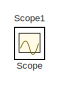
[diagram: root canvas - part 1/3, top left region]
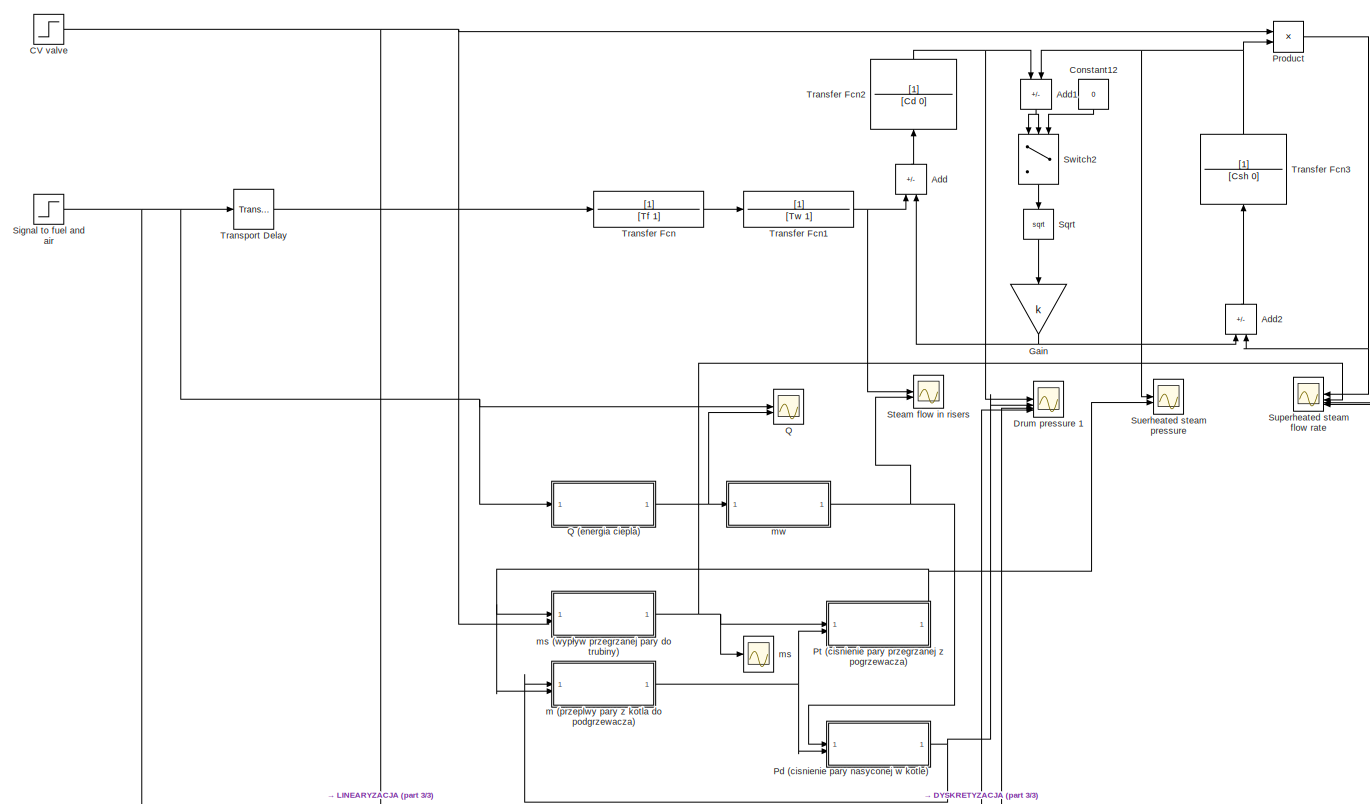
[diagram: root canvas - part 2/3, full width, middle band]
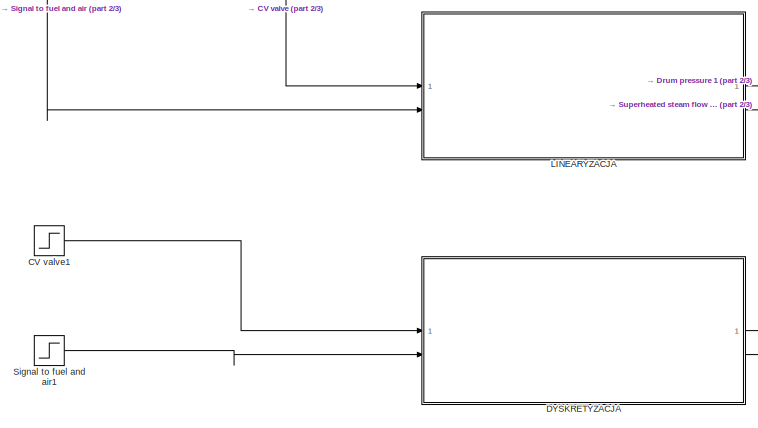
[diagram: root canvas - part 3/3, bottom left region]
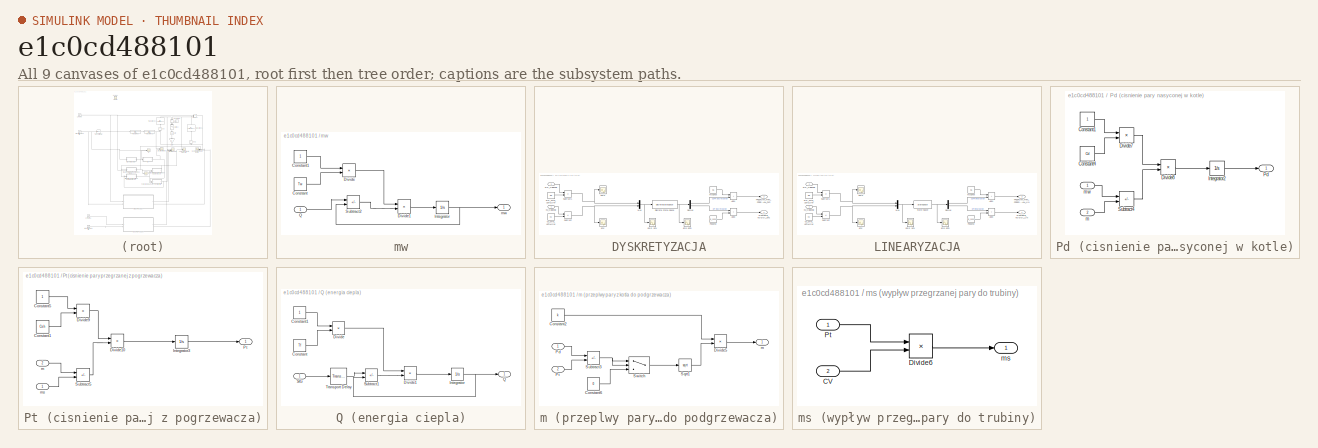
[diagram: thumbnail index - all 9 canvases of the model, root first then tree order]
MODEL slx_e1c0cd488101
KIND model
CONFIG AbsTol = auto
CONFIG EnableMultiTasking = off
CONFIG FixedStep = auto
CONFIG MaxStep = auto
CONFIG MinStep = auto
CONFIG RelTol = 1e-3
CONFIG SampleTimeConstraint = Unconstrained
CONFIG SolverName = VariableStepAuto
CONFIG StartTime = 0.0
CONFIG StopTime = 7000
WORKSPACE source: mxarray member
WORKSPACE Cd = 180
WORKSPACE Csh = 30
WORKSPACE K = 3.1616
WORKSPACE Tauf = 5
WORKSPACE Tf = 8
WORKSPACE Tfuel = 8
WORKSPACE Tw = 6
WORKSPACE k = 3.1616
BLOCK [SubSystem]  mw 
BLOCK [Constant]  mw /Constant
  Value = Tw
BLOCK [Constant]  mw /Constant1
BLOCK [Product]  mw /Divide
  Inputs = */
BLOCK [Product]  mw /Divide1
  Inputs = **
  RndMeth = Zero
  SaturateOnIntegerOverflow = on
BLOCK [Integrator]  mw /Integrator
BLOCK [Inport]  mw /Q
BLOCK [Sum]  mw /Subtract2
  IconShape = rectangular
  Inputs = +-
BLOCK [Outport]  mw /mw
BLOCK [Sum] Add
  IconShape = rectangular
  Inputs = +-
  NameLocation = right
BLOCK [Sum] Add1
  IconShape = rectangular
  Inputs = +-
  NameLocation = left
BLOCK [Sum] Add2
  IconShape = rectangular
  Inputs = +-
  NameLocation = right
BLOCK [Step] CV valve
  After = CV_FINAL_VALUE
  Before = CV_INIT_VALUE
  SampleTime = 0
  Time = STEP_TIME
BLOCK [Step] CV valve1
  After = CV_FINAL_VALUE
  Before = CV_INIT_VALUE
  SampleTime = Ti
  Time = STEP_TIME
BLOCK [Constant] Constant12
  NameLocation = left
  Value = 0
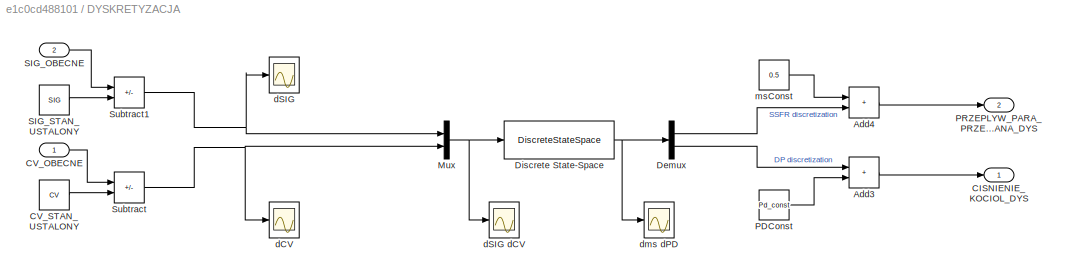
BLOCK [SubSystem] DYSKRETYZACJA
BLOCK [Sum] DYSKRETYZACJA/Add3
  IconShape = rectangular
BLOCK [Sum] DYSKRETYZACJA/Add4
  IconShape = rectangular
BLOCK [Outport] DYSKRETYZACJA/CISNIENIE_KOCIOL_DYS
BLOCK [Inport] DYSKRETYZACJA/CV_OBECNE
BLOCK [Constant] DYSKRETYZACJA/CV_STAN_USTALONY
  Value = CV
BLOCK [Demux] DYSKRETYZACJA/Demux
  Outputs = 2
BLOCK [DiscreteStateSpace] DYSKRETYZACJA/Discrete State-Space
  A = A_prim
  B = B_prim
  C = C1
  D = D1
  SampleTime = -1
BLOCK [Mux] DYSKRETYZACJA/Mux
  DisplayOption = bar
  Inputs = 2
BLOCK [Constant] DYSKRETYZACJA/PDConst
  Value = Pd_const
BLOCK [Outport] DYSKRETYZACJA/PRZEPLYW_PARA_PRZEGRZANA_DYS
  NameLocation = top
  Port = 2
BLOCK [Inport] DYSKRETYZACJA/SIG_OBECNE
  IconDisplay = Signal name
  Port = 2
BLOCK [Constant] DYSKRETYZACJA/SIG_STAN_USTALONY
  Value = SIG
BLOCK [Sum] DYSKRETYZACJA/Subtract
  IconShape = rectangular
  Inputs = +-
BLOCK [Sum] DYSKRETYZACJA/Subtract1
  IconShape = rectangular
  Inputs = +-
BLOCK [Scope] DYSKRETYZACJA/dCV
  Floating = off
  NumInputPorts = 1
  ScopeSpecificationString = Simulink.scopes.TimeScopeBlockCfg('CurrentConfiguration', extmgr.ConfigurationSet(extmgr.Configuration('Core','General UI',true),extmgr.Configuration('Core','Source UI',true),extmgr.Configuration('Sources','WiredSimulink',true,'DataLoggingVariableName','ScopeData1'),extmgr.Configuration('Visuals','Time Domain',true,'SerializedDisplays',{struct('MinYLimReal','-1.00000','MaxYLimReal','1.00000','YLab...<+1740ch>
BLOCK [Scope] DYSKRETYZACJA/dSIG
  Floating = off
  NumInputPorts = 1
  ScopeSpecificationString = Simulink.scopes.TimeScopeBlockCfg('CurrentConfiguration', extmgr.ConfigurationSet(extmgr.Configuration('Core','General UI',true),extmgr.Configuration('Core','Source UI',true),extmgr.Configuration('Sources','WiredSimulink',true,'DataLoggingVariableName','ScopeData2'),extmgr.Configuration('Visuals','Time Domain',true,'SerializedDisplays',{struct('MinYLimReal','-0.225','MaxYLimReal','0.025','YLabelRe...<+1728ch>
BLOCK [Scope] DYSKRETYZACJA/dSIG dCV
  Floating = off
  NumInputPorts = 1
  ScopeSpecificationString = Simulink.scopes.TimeScopeBlockCfg('CurrentConfiguration', extmgr.ConfigurationSet(extmgr.Configuration('Core','General UI',true),extmgr.Configuration('Core','Source UI',true),extmgr.Configuration('Sources','WiredSimulink',true,'DataLoggingVariableName','ScopeData1'),extmgr.Configuration('Visuals','Time Domain',true,'SerializedDisplays',{struct('MinYLimReal','-0.0025','MaxYLimReal','0.0225','YLabel...<+1848ch>
BLOCK [Scope] DYSKRETYZACJA/dms dPD
  Floating = off
  NumInputPorts = 1
  ScopeSpecificationString = Simulink.scopes.TimeScopeBlockCfg('CurrentConfiguration', extmgr.ConfigurationSet(extmgr.Configuration('Core','General UI',true),extmgr.Configuration('Core','Source UI',true),extmgr.Configuration('Sources','WiredSimulink',true,'DataLoggingVariableName','ScopeData2'),extmgr.Configuration('Visuals','Time Domain',true,'SerializedDisplays',{struct('MinYLimReal','-146.52036','MaxYLimReal','1318.68325',...<+2526ch>
BLOCK [Constant] DYSKRETYZACJA/msConst
  Value = 0.5
BLOCK [Scope] Drum pressure 1
  Floating = off
  NumInputPorts = 4
  ScopeSpecificationString = Simulink.scopes.TimeScopeBlockCfg('CurrentConfiguration', extmgr.ConfigurationSet(extmgr.Configuration('Core','General UI',true,'FigureColor',[0.862745098039216 0.862745098039216 0.862745098039216]),extmgr.Configuration('Core','Source UI',true),extmgr.Configuration('Sources','WiredSimulink',true,'DataLoggingVariableName','ScopeData1'),extmgr.Configuration('Visuals','Time Domain',true,'SerializedDi...<+1850ch>
BLOCK [Gain] Gain
  Gain = k
  NameLocation = left
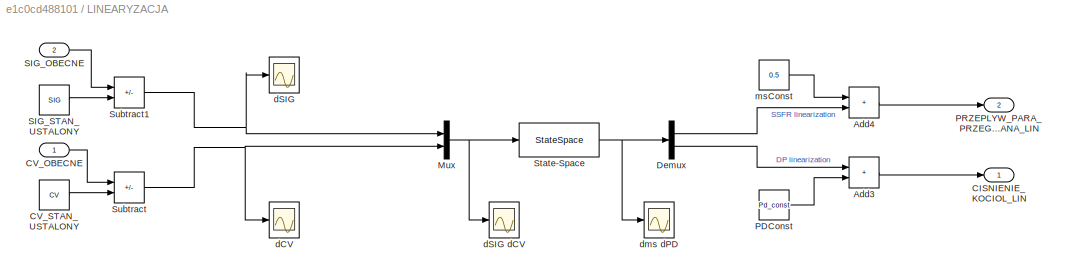
BLOCK [SubSystem] LINEARYZACJA
BLOCK [Sum] LINEARYZACJA/Add3
  IconShape = rectangular
BLOCK [Sum] LINEARYZACJA/Add4
  IconShape = rectangular
BLOCK [Outport] LINEARYZACJA/CISNIENIE_KOCIOL_LIN
BLOCK [Inport] LINEARYZACJA/CV_OBECNE
BLOCK [Constant] LINEARYZACJA/CV_STAN_USTALONY
  Value = CV
BLOCK [Demux] LINEARYZACJA/Demux
  Outputs = 2
BLOCK [Mux] LINEARYZACJA/Mux
  DisplayOption = bar
  Inputs = 2
BLOCK [Constant] LINEARYZACJA/PDConst
  Value = Pd_const
BLOCK [Outport] LINEARYZACJA/PRZEPLYW_PARA_PRZEGRZANA_LIN
  NameLocation = top
  Port = 2
BLOCK [Inport] LINEARYZACJA/SIG_OBECNE
  Port = 2
BLOCK [Constant] LINEARYZACJA/SIG_STAN_USTALONY
  Value = SIG
BLOCK [StateSpace] LINEARYZACJA/State-Space
  A = A1
  AllowTunableDMatrix = on
  B = B1
  C = C1
  D = D1
  InitialCondition = 0
BLOCK [Sum] LINEARYZACJA/Subtract
  IconShape = rectangular
  Inputs = +-
BLOCK [Sum] LINEARYZACJA/Subtract1
  IconShape = rectangular
  Inputs = +-
BLOCK [Scope] LINEARYZACJA/dCV
  Floating = off
  NumInputPorts = 1
  ScopeSpecificationString = Simulink.scopes.TimeScopeBlockCfg('CurrentConfiguration', extmgr.ConfigurationSet(extmgr.Configuration('Core','General UI',true),extmgr.Configuration('Core','Source UI',true),extmgr.Configuration('Sources','WiredSimulink',true,'DataLoggingVariableName','ScopeData1'),extmgr.Configuration('Visuals','Time Domain',true,'SerializedDisplays',{struct('MinYLimReal','-1.00000','MaxYLimReal','1.00000','YLab...<+1739ch>
BLOCK [Scope] LINEARYZACJA/dSIG
  Floating = off
  NumInputPorts = 1
  ScopeSpecificationString = Simulink.scopes.TimeScopeBlockCfg('CurrentConfiguration', extmgr.ConfigurationSet(extmgr.Configuration('Core','General UI',true),extmgr.Configuration('Core','Source UI',true),extmgr.Configuration('Sources','WiredSimulink',true,'DataLoggingVariableName','ScopeData2'),extmgr.Configuration('Visuals','Time Domain',true,'SerializedDisplays',{struct('MinYLimReal','-0.00125','MaxYLimReal','0.01125','YLab...<+1740ch>
BLOCK [Scope] LINEARYZACJA/dSIG dCV
  Floating = off
  NumInputPorts = 1
  ScopeSpecificationString = Simulink.scopes.TimeScopeBlockCfg('CurrentConfiguration', extmgr.ConfigurationSet(extmgr.Configuration('Core','General UI',true),extmgr.Configuration('Core','Source UI',true),extmgr.Configuration('Sources','WiredSimulink',true,'DataLoggingVariableName','ScopeData1'),extmgr.Configuration('Visuals','Time Domain',true,'SerializedDisplays',{struct('MinYLimReal','-0.565','MaxYLimReal','0.085','YLabelRe...<+1819ch>
BLOCK [Scope] LINEARYZACJA/dms dPD
  Floating = off
  NumInputPorts = 1
  ScopeSpecificationString = Simulink.scopes.TimeScopeBlockCfg('CurrentConfiguration', extmgr.ConfigurationSet(extmgr.Configuration('Core','General UI',true),extmgr.Configuration('Core','Source UI',true),extmgr.Configuration('Sources','WiredSimulink',true,'DataLoggingVariableName','ScopeData2'),extmgr.Configuration('Visuals','Time Domain',true,'SerializedDisplays',{struct('MinYLimReal','-0.01153','MaxYLimReal','0.0235','YLabe...<+2471ch>
BLOCK [Constant] LINEARYZACJA/msConst
  Value = 0.5
BLOCK [SubSystem] Pd (cisnienie pary nasyconej w kotle)
BLOCK [Constant] Pd (cisnienie pary nasyconej w kotle)/Constant1
BLOCK [Constant] Pd (cisnienie pary nasyconej w kotle)/Constant4
  Value = Cd
BLOCK [Product] Pd (cisnienie pary nasyconej w kotle)/Divide7
  Inputs = */
BLOCK [Product] Pd (cisnienie pary nasyconej w kotle)/Divide8
  Inputs = **
BLOCK [Integrator] Pd (cisnienie pary nasyconej w kotle)/Integrator2
BLOCK [Outport] Pd (cisnienie pary nasyconej w kotle)/Pd
BLOCK [Sum] Pd (cisnienie pary nasyconej w kotle)/Subtract4
  IconShape = rectangular
  Inputs = +-
BLOCK [Inport] Pd (cisnienie pary nasyconej w kotle)/m
  Port = 2
BLOCK [Inport] Pd (cisnienie pary nasyconej w kotle)/mw
BLOCK [Product] Product
BLOCK [SubSystem] Pt (cisnienie pary przegrzanej z pogrzewacza)
BLOCK [Constant] Pt (cisnienie pary przegrzanej z pogrzewacza)/Constant1
  Value = Csh
BLOCK [Constant] Pt (cisnienie pary przegrzanej z pogrzewacza)/Constant5
BLOCK [Product] Pt (cisnienie pary przegrzanej z pogrzewacza)/Divide10
  Inputs = **
BLOCK [Product] Pt (cisnienie pary przegrzanej z pogrzewacza)/Divide9
  Inputs = */
BLOCK [Integrator] Pt (cisnienie pary przegrzanej z pogrzewacza)/Integrator3
BLOCK [Outport] Pt (cisnienie pary przegrzanej z pogrzewacza)/Pt
BLOCK [Sum] Pt (cisnienie pary przegrzanej z pogrzewacza)/Subtract5
  IconShape = rectangular
  Inputs = +-
BLOCK [Inport] Pt (cisnienie pary przegrzanej z pogrzewacza)/m
  Port = 2
BLOCK [Inport] Pt (cisnienie pary przegrzanej z pogrzewacza)/ms
BLOCK [Scope] Q
  Floating = off
  NumInputPorts = 2
  ScopeSpecificationString = Simulink.scopes.TimeScopeBlockCfg('CurrentConfiguration', extmgr.ConfigurationSet(extmgr.Configuration('Core','General UI',true),extmgr.Configuration('Core','Source UI',true),extmgr.Configuration('Sources','WiredSimulink',true,'DataLoggingVariableName','ScopeData1'),extmgr.Configuration('Visuals','Time Domain',true,'SerializedDisplays',{struct('MinYLimReal','-0.0625','MaxYLimReal','0.5625','YLabel...<+1496ch>
BLOCK [SubSystem] Q (energia ciepla)
BLOCK [Constant] Q (energia ciepla)/Constant
  Value = Tf
BLOCK [Constant] Q (energia ciepla)/Constant1
BLOCK [Product] Q (energia ciepla)/Divide
  Inputs = */
BLOCK [Product] Q (energia ciepla)/Divide1
  Inputs = **
  RndMeth = Zero
  SaturateOnIntegerOverflow = on
BLOCK [Integrator] Q (energia ciepla)/Integrator
BLOCK [Outport] Q (energia ciepla)/Q
BLOCK [Inport] Q (energia ciepla)/SIG
BLOCK [Sum] Q (energia ciepla)/Subtract1
  IconShape = rectangular
  Inputs = +-
BLOCK [TransportDelay] Q (energia ciepla)/Transport Delay
  DelayTime = Tauf
BLOCK [Scope] Scope
  Floating = off
  IOType = viewer
  NumInputPorts = 1
  ScopeSpecificationString = Simulink.scopes.TimeScopeBlockCfg('CurrentConfiguration', extmgr.ConfigurationSet(extmgr.Configuration('Core','General UI',true),extmgr.Configuration('Core','Source UI',true),extmgr.Configuration('Sources','WiredSimulink',true,'DataLoggingVariableName','ScopeData1'),extmgr.Configuration('Visuals','Time Domain',true,'SerializedDisplays',{struct('MinYLimReal','-0.0625','MaxYLimReal','0.5625','YLabel...<+1413ch>
BLOCK [Scope] Scope1
  Floating = off
  IOType = viewer
  NumInputPorts = 1
  ScopeSpecificationString = Simulink.scopes.TimeScopeBlockCfg('CurrentConfiguration', extmgr.ConfigurationSet(extmgr.Configuration('Core','General UI',true),extmgr.Configuration('Core','Source UI',true),extmgr.Configuration('Sources','WiredSimulink',true,'DataLoggingVariableName','ScopeData2'),extmgr.Configuration('Visuals','Time Domain',true,'SerializedDisplays',{struct('MinYLimReal','-0.125','MaxYLimReal','1.12497','YLabel...<+1384ch>
BLOCK [Step] Signal to fuel and air
  After = SIG_FINAL_VALUE
  Before = SIG_INIT_VALUE
  NameLocation = top
  SampleTime = 0
  Time = STEP_TIME
BLOCK [Step] Signal to fuel and air1
  After = SIG_FINAL_VALUE
  Before = SIG_INIT_VALUE
  NameLocation = top
  SampleTime = Ti
  Time = STEP_TIME
BLOCK [Sqrt] Sqrt
  NameLocation = left
BLOCK [Scope] Steam flow in risers
  Floating = off
  NumInputPorts = 2
  ScopeSpecificationString = Simulink.scopes.TimeScopeBlockCfg('CurrentConfiguration', extmgr.ConfigurationSet(extmgr.Configuration('Core','General UI',true),extmgr.Configuration('Core','Source UI',true),extmgr.Configuration('Sources','WiredSimulink',true,'DataLoggingVariableName','ScopeData2'),extmgr.Configuration('Visuals','Time Domain',true,'SerializedDisplays',{struct('MinYLimReal','-0.0625','MaxYLimReal','0.5625','YLabel...<+1472ch>
BLOCK [Scope] Suerheated steam pressure
  Floating = off
  NumInputPorts = 2
  ScopeSpecificationString = Simulink.scopes.TimeScopeBlockCfg('CurrentConfiguration', extmgr.ConfigurationSet(extmgr.Configuration('Core','General UI',true),extmgr.Configuration('Core','Source UI',true),extmgr.Configuration('Sources','WiredSimulink',true,'DataLoggingVariableName','ScopeData3'),extmgr.Configuration('Visuals','Time Domain',true,'SerializedDisplays',{struct('MinYLimReal','-0.08884','MaxYLimReal','0.79957','YLab...<+1825ch>
BLOCK [Scope] Superheated steam flow rate
  Floating = off
  NumInputPorts = 4
  ScopeSpecificationString = Simulink.scopes.TimeScopeBlockCfg('CurrentConfiguration', extmgr.ConfigurationSet(extmgr.Configuration('Core','General UI',true),extmgr.Configuration('Core','Source UI',true),extmgr.Configuration('Sources','WiredSimulink',true),extmgr.Configuration('Visuals','Time Domain',true,'SerializedDisplays',{struct('MinYLimReal','-0.065','MaxYLimReal','0.585','YLabelReal','','MinYLimMag','0.00000','MaxYLimM...<+1767ch>
BLOCK [Switch] Switch2
  Criteria = u2 > Threshold
  InputSameDT = off
  NameLocation = left
  SaturateOnIntegerOverflow = off
BLOCK [TransferFcn] Transfer Fcn
  Denominator = [Tf 1]
BLOCK [TransferFcn] Transfer Fcn1
  Denominator = [Tw 1]
BLOCK [TransferFcn] Transfer Fcn2
  Denominator = [Cd  0]
  NameLocation = right
BLOCK [TransferFcn] Transfer Fcn3
  Denominator = [Csh  0]
  NameLocation = right
BLOCK [TransportDelay] Transport Delay
  DelayTime = Tauf
BLOCK [SubSystem] m (przeplwy pary z kotla do podgrzewacza)
BLOCK [Constant] m (przeplwy pary z kotla do podgrzewacza)/Constant2
  Value = k
BLOCK [Constant] m (przeplwy pary z kotla do podgrzewacza)/Constant6
  Value = 0
BLOCK [Product] m (przeplwy pary z kotla do podgrzewacza)/Divide5
  Inputs = **
BLOCK [Inport] m (przeplwy pary z kotla do podgrzewacza)/Pd
BLOCK [Inport] m (przeplwy pary z kotla do podgrzewacza)/Pt
  Port = 2
BLOCK [Sqrt] m (przeplwy pary z kotla do podgrzewacza)/Sqrt1
BLOCK [Sum] m (przeplwy pary z kotla do podgrzewacza)/Subtract3
  IconShape = rectangular
  Inputs = +-
BLOCK [Switch] m (przeplwy pary z kotla do podgrzewacza)/Switch
  Criteria = u2 > Threshold
  InputSameDT = off
  SaturateOnIntegerOverflow = off
BLOCK [Outport] m (przeplwy pary z kotla do podgrzewacza)/m
BLOCK [Scope] ms
  Floating = off
  NumInputPorts = 1
  ScopeSpecificationString = Simulink.scopes.TimeScopeBlockCfg('CurrentConfiguration', extmgr.ConfigurationSet(extmgr.Configuration('Core','General UI',true),extmgr.Configuration('Core','Source UI',true),extmgr.Configuration('Sources','WiredSimulink',true,'DataLoggingVariableName','ScopeData3'),extmgr.Configuration('Visuals','Time Domain',true,'SerializedDisplays',{struct('MinYLimReal','-0.06499','MaxYLimReal','0.58494','YLab...<+2450ch>
BLOCK [SubSystem] ms (wypływ przegrzanej pary do trubiny)
BLOCK [Inport] ms (wypływ przegrzanej pary do trubiny)/CV
  Port = 2
BLOCK [Product] ms (wypływ przegrzanej pary do trubiny)/Divide6
  Inputs = **
BLOCK [Inport] ms (wypływ przegrzanej pary do trubiny)/Pt
BLOCK [Outport] ms (wypływ przegrzanej pary do trubiny)/ms
LINE  mw /Constant1:1 ->  mw /Divide:1
LINE  mw /Constant:1 ->  mw /Divide:2
LINE  mw /Divide1:1 ->  mw /Integrator:1
LINE  mw /Divide:1 ->  mw /Divide1:1
NET  mw /Integrator:1 ->  mw /Subtract2:2,  mw /mw:1
LINE  mw /Q:1 ->  mw /Subtract2:1
LINE  mw /Subtract2:1 ->  mw /Divide1:2
NET  mw :1 -> Pd (cisnienie pary nasyconej w kotle):1, Steam flow in risers:2
NET Add1:1 -> Switch2:1, Switch2:2
LINE Add2:1 -> Transfer Fcn3:1
LINE Add:1 -> Transfer Fcn2:1
LINE CV valve1:1 -> DYSKRETYZACJA:1
NET CV valve:1 -> LINEARYZACJA:1, Product:1, ms (wypływ przegrzanej pary do trubiny):2
LINE Constant12:1 -> Switch2:3
LINE DYSKRETYZACJA/Add3:1 -> DYSKRETYZACJA/CISNIENIE_KOCIOL_DYS:1
LINE DYSKRETYZACJA/Add4:1 -> DYSKRETYZACJA/PRZEPLYW_PARA_PRZEGRZANA_DYS:1
LINE DYSKRETYZACJA/CV_OBECNE:1 -> DYSKRETYZACJA/Subtract:1
LINE DYSKRETYZACJA/CV_STAN_USTALONY:1 -> DYSKRETYZACJA/Subtract:2
LINE DYSKRETYZACJA/Demux:1 -> DYSKRETYZACJA/Add4:2
LINE DYSKRETYZACJA/Demux:2 -> DYSKRETYZACJA/Add3:1
NET DYSKRETYZACJA/Discrete State-Space:1 -> DYSKRETYZACJA/Demux:1, DYSKRETYZACJA/dms dPD:1
NET DYSKRETYZACJA/Mux:1 -> DYSKRETYZACJA/Discrete State-Space:1, DYSKRETYZACJA/dSIG dCV:1
LINE DYSKRETYZACJA/PDConst:1 -> DYSKRETYZACJA/Add3:2
LINE DYSKRETYZACJA/SIG_OBECNE:1 -> DYSKRETYZACJA/Subtract1:1
LINE DYSKRETYZACJA/SIG_STAN_USTALONY:1 -> DYSKRETYZACJA/Subtract1:2
NET DYSKRETYZACJA/Subtract1:1 -> DYSKRETYZACJA/Mux:1, DYSKRETYZACJA/dSIG:1
NET DYSKRETYZACJA/Subtract:1 -> DYSKRETYZACJA/Mux:2, DYSKRETYZACJA/dCV:1
LINE DYSKRETYZACJA/msConst:1 -> DYSKRETYZACJA/Add4:1
LINE DYSKRETYZACJA:1 -> Drum pressure 1:4
LINE DYSKRETYZACJA:2 -> Superheated steam flow rate:4
NET Gain:1 -> Add2:1, Add:2
LINE LINEARYZACJA/Add3:1 -> LINEARYZACJA/CISNIENIE_KOCIOL_LIN:1
LINE LINEARYZACJA/Add4:1 -> LINEARYZACJA/PRZEPLYW_PARA_PRZEGRZANA_LIN:1
LINE LINEARYZACJA/CV_OBECNE:1 -> LINEARYZACJA/Subtract:1
LINE LINEARYZACJA/CV_STAN_USTALONY:1 -> LINEARYZACJA/Subtract:2
LINE LINEARYZACJA/Demux:1 -> LINEARYZACJA/Add4:2
LINE LINEARYZACJA/Demux:2 -> LINEARYZACJA/Add3:1
NET LINEARYZACJA/Mux:1 -> LINEARYZACJA/State-Space:1, LINEARYZACJA/dSIG dCV:1
LINE LINEARYZACJA/PDConst:1 -> LINEARYZACJA/Add3:2
LINE LINEARYZACJA/SIG_OBECNE:1 -> LINEARYZACJA/Subtract1:1
LINE LINEARYZACJA/SIG_STAN_USTALONY:1 -> LINEARYZACJA/Subtract1:2
NET LINEARYZACJA/State-Space:1 -> LINEARYZACJA/Demux:1, LINEARYZACJA/dms dPD:1
NET LINEARYZACJA/Subtract1:1 -> LINEARYZACJA/Mux:1, LINEARYZACJA/dSIG:1
NET LINEARYZACJA/Subtract:1 -> LINEARYZACJA/Mux:2, LINEARYZACJA/dCV:1
LINE LINEARYZACJA/msConst:1 -> LINEARYZACJA/Add4:1
LINE LINEARYZACJA:1 -> Drum pressure 1:3
LINE LINEARYZACJA:2 -> Superheated steam flow rate:3
LINE Pd (cisnienie pary nasyconej w kotle)/Constant1:1 -> Pd (cisnienie pary nasyconej w kotle)/Divide7:1
LINE Pd (cisnienie pary nasyconej w kotle)/Constant4:1 -> Pd (cisnienie pary nasyconej w kotle)/Divide7:2
LINE Pd (cisnienie pary nasyconej w kotle)/Divide7:1 -> Pd (cisnienie pary nasyconej w kotle)/Divide8:1
LINE Pd (cisnienie pary nasyconej w kotle)/Divide8:1 -> Pd (cisnienie pary nasyconej w kotle)/Integrator2:1
LINE Pd (cisnienie pary nasyconej w kotle)/Integrator2:1 -> Pd (cisnienie pary nasyconej w kotle)/Pd:1
LINE Pd (cisnienie pary nasyconej w kotle)/Subtract4:1 -> Pd (cisnienie pary nasyconej w kotle)/Divide8:2
LINE Pd (cisnienie pary nasyconej w kotle)/m:1 -> Pd (cisnienie pary nasyconej w kotle)/Subtract4:2
LINE Pd (cisnienie pary nasyconej w kotle)/mw:1 -> Pd (cisnienie pary nasyconej w kotle)/Subtract4:1
NET Pd (cisnienie pary nasyconej w kotle):1 -> Drum pressure 1:2, m (przeplwy pary z kotla do podgrzewacza):1
NET Product:1 -> Add2:2, Superheated steam flow rate:1
LINE Pt (cisnienie pary przegrzanej z pogrzewacza)/Constant1:1 -> Pt (cisnienie pary przegrzanej z pogrzewacza)/Divide9:2
LINE Pt (cisnienie pary przegrzanej z pogrzewacza)/Constant5:1 -> Pt (cisnienie pary przegrzanej z pogrzewacza)/Divide9:1
LINE Pt (cisnienie pary przegrzanej z pogrzewacza)/Divide10:1 -> Pt (cisnienie pary przegrzanej z pogrzewacza)/Integrator3:1
LINE Pt (cisnienie pary przegrzanej z pogrzewacza)/Divide9:1 -> Pt (cisnienie pary przegrzanej z pogrzewacza)/Divide10:1
LINE Pt (cisnienie pary przegrzanej z pogrzewacza)/Integrator3:1 -> Pt (cisnienie pary przegrzanej z pogrzewacza)/Pt:1
LINE Pt (cisnienie pary przegrzanej z pogrzewacza)/Subtract5:1 -> Pt (cisnienie pary przegrzanej z pogrzewacza)/Divide10:2
LINE Pt (cisnienie pary przegrzanej z pogrzewacza)/m:1 -> Pt (cisnienie pary przegrzanej z pogrzewacza)/Subtract5:1
LINE Pt (cisnienie pary przegrzanej z pogrzewacza)/ms:1 -> Pt (cisnienie pary przegrzanej z pogrzewacza)/Subtract5:2
NET Pt (cisnienie pary przegrzanej z pogrzewacza):1 -> Suerheated steam pressure:2, m (przeplwy pary z kotla do podgrzewacza):2, ms (wypływ przegrzanej pary do trubiny):1
LINE Q (energia ciepla)/Constant1:1 -> Q (energia ciepla)/Divide:1
LINE Q (energia ciepla)/Constant:1 -> Q (energia ciepla)/Divide:2
LINE Q (energia ciepla)/Divide1:1 -> Q (energia ciepla)/Integrator:1
LINE Q (energia ciepla)/Divide:1 -> Q (energia ciepla)/Divide1:1
NET Q (energia ciepla)/Integrator:1 -> Q (energia ciepla)/Q:1, Q (energia ciepla)/Subtract1:2
LINE Q (energia ciepla)/SIG:1 -> Q (energia ciepla)/Transport Delay:1
LINE Q (energia ciepla)/Subtract1:1 -> Q (energia ciepla)/Divide1:2
LINE Q (energia ciepla)/Transport Delay:1 -> Q (energia ciepla)/Subtract1:1
NET Q (energia ciepla):1 ->  mw :1, Q:2
LINE Signal to fuel and air1:1 -> DYSKRETYZACJA:2
NET Signal to fuel and air:1 -> LINEARYZACJA:2, Q (energia ciepla):1, Q:1, Transport Delay:1
LINE Sqrt:1 -> Gain:1
LINE Switch2:1 -> Sqrt:1
NET Transfer Fcn1:1 -> Add:1, Steam flow in risers:1
NET Transfer Fcn2:1 -> Add1:1, Drum pressure 1:1
NET Transfer Fcn3:1 -> Add1:2, Product:2, Suerheated steam pressure:1
LINE Transfer Fcn:1 -> Transfer Fcn1:1
LINE Transport Delay:1 -> Transfer Fcn:1
LINE m (przeplwy pary z kotla do podgrzewacza)/Constant2:1 -> m (przeplwy pary z kotla do podgrzewacza)/Divide5:1
LINE m (przeplwy pary z kotla do podgrzewacza)/Constant6:1 -> m (przeplwy pary z kotla do podgrzewacza)/Switch:3
LINE m (przeplwy pary z kotla do podgrzewacza)/Divide5:1 -> m (przeplwy pary z kotla do podgrzewacza)/m:1
LINE m (przeplwy pary z kotla do podgrzewacza)/Pd:1 -> m (przeplwy pary z kotla do podgrzewacza)/Subtract3:1
LINE m (przeplwy pary z kotla do podgrzewacza)/Pt:1 -> m (przeplwy pary z kotla do podgrzewacza)/Subtract3:2
LINE m (przeplwy pary z kotla do podgrzewacza)/Sqrt1:1 -> m (przeplwy pary z kotla do podgrzewacza)/Divide5:2
NET m (przeplwy pary z kotla do podgrzewacza)/Subtract3:1 -> m (przeplwy pary z kotla do podgrzewacza)/Switch:1, m (przeplwy pary z kotla do podgrzewacza)/Switch:2
LINE m (przeplwy pary z kotla do podgrzewacza)/Switch:1 -> m (przeplwy pary z kotla do podgrzewacza)/Sqrt1:1
NET m (przeplwy pary z kotla do podgrzewacza):1 -> Pd (cisnienie pary nasyconej w kotle):2, Pt (cisnienie pary przegrzanej z pogrzewacza):2
LINE ms (wypływ przegrzanej pary do trubiny)/CV:1 -> ms (wypływ przegrzanej pary do trubiny)/Divide6:2
LINE ms (wypływ przegrzanej pary do trubiny)/Divide6:1 -> ms (wypływ przegrzanej pary do trubiny)/ms:1
LINE ms (wypływ przegrzanej pary do trubiny)/Pt:1 -> ms (wypływ przegrzanej pary do trubiny)/Divide6:1
NET ms (wypływ przegrzanej pary do trubiny):1 -> Pt (cisnienie pary przegrzanej z pogrzewacza):1, Superheated steam flow rate:2, ms:1
note: NET lines group one-source signal fan-out (src -> all destinations, sorted); 1:1 wires keep LINE
